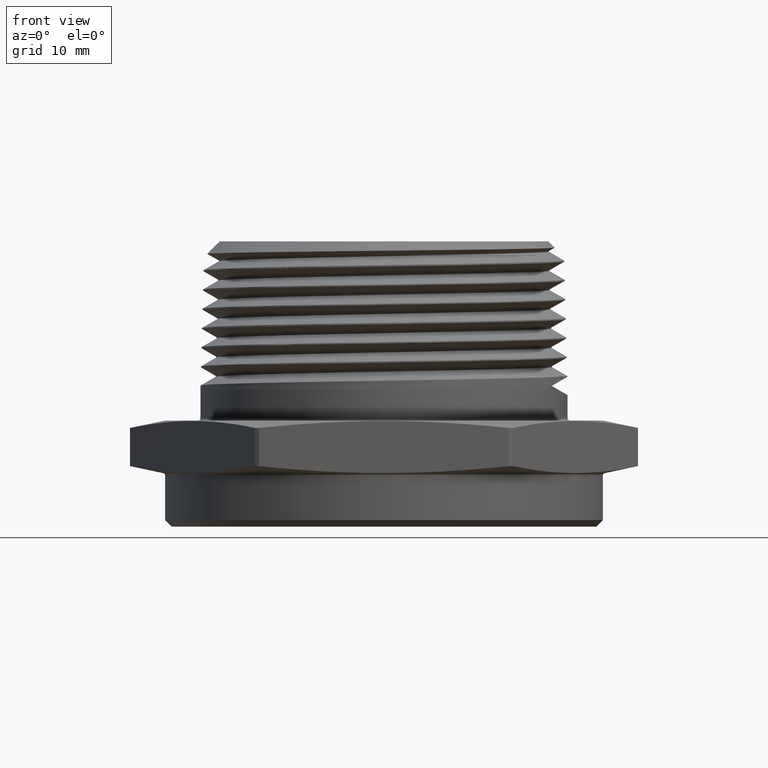
[diagram: clean part render]
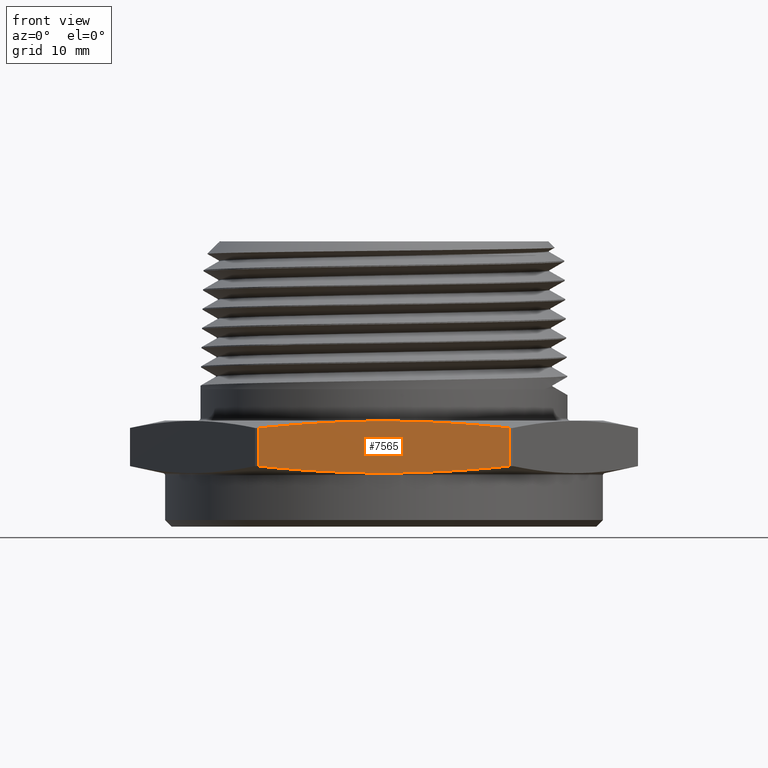
[diagram: same view with one face highlighted and labeled with its STEP entity id]
A machine part, front view. The second image highlights one B-rep face of the part: STEP entity #7565.
In plain terms, the highlighted planar face has unit normal (-0, 1, 0).
Its self-contained STEP definition (entity closure, byte-faithful):
#270 = AXIS2_PLACEMENT_3D ( 'NONE', #960, #965, #966 ) ;
#459 = B_SPLINE_CURVE_WITH_KNOTS ( 'NONE', 3,
 ( #6205, #6195, #6197, #6207, #6208, #6209, #6210, #6211, #6212, #6213 ),
 .UNSPECIFIED., .F., .F.,
 ( 4, 2, 2, 2, 4 ),
 ( 0.05573964240388473700, 0.06293994667375101000, 0.07014025094361726900, 0.07734055521348354200, 0.08454085948334980100 ),
 .UNSPECIFIED. ) ;
#462 = B_SPLINE_CURVE_WITH_KNOTS ( 'NONE', 3,
 ( #6233, #6223, #6225, #6235, #6236, #6237, #6238, #6239, #6240, #6241 ),
 .UNSPECIFIED., .F., .F.,
 ( 4, 2, 2, 2, 4 ),
 ( 0.02464821346536203600, 0.03185556859266473100, 0.03906292371996741800, 0.04627027884727011300, 0.05347763397457280800 ),
 .UNSPECIFIED. ) ;
#847 = CARTESIAN_POINT ( 'NONE',  ( 0.5652547451130174300, -0.9999999999999994400, 0.2062671592269260100 ) ) ;
#851 = CARTESIAN_POINT ( 'NONE',  ( 0.5652547451130174300, -0.9999999999999994400, 0.03373284077307360500 ) ) ;
#852 = CARTESIAN_POINT ( 'NONE',  ( -0.5652547451130169900, -0.9999999999999996700, 0.2062671592269261500 ) ) ;
#862 = CARTESIAN_POINT ( 'NONE',  ( -0.5652547451130169900, -0.9999999999999996700, 0.03373284077307382000 ) ) ;
#959 = PLANE ( 'NONE',  #270 ) ;
#960 = CARTESIAN_POINT ( 'NONE',  ( -0.5773502691896251800, -1.000000000000000000, 0.2399999999999999900 ) ) ;
#965 = DIRECTION ( 'NONE',  ( -2.365849761790803500E-016, 1.000000000000000000, 0.0000000000000000000 ) ) ;
#966 = DIRECTION ( 'NONE',  ( -1.000000000000000000, -2.365849761790803500E-016, 0.0000000000000000000 ) ) ;
#1124 = FACE_OUTER_BOUND ( 'NONE', #5093, .T. ) ;
#4698 = EDGE_CURVE ( 'NONE', #7310, #7320, #7486, .T. ) ;
#4705 = EDGE_CURVE ( 'NONE', #7309, #7304, #7498, .T. ) ;
#4715 = EDGE_CURVE ( 'NONE', #7304, #7310, #459, .T. ) ;
#4718 = EDGE_CURVE ( 'NONE', #7320, #7309, #462, .T. ) ;
#4973 = ORIENTED_EDGE ( 'NONE', *, *, #4718, .T. ) ;
#4974 = ORIENTED_EDGE ( 'NONE', *, *, #4705, .T. ) ;
#4975 = ORIENTED_EDGE ( 'NONE', *, *, #4715, .T. ) ;
#4976 = ORIENTED_EDGE ( 'NONE', *, *, #4698, .T. ) ;
#5093 = EDGE_LOOP ( 'NONE', ( #4973, #4974, #4975, #4976 ) ) ;
#6145 = CARTESIAN_POINT ( 'NONE',  ( -0.5652547451130169900, -0.9999999999999996700, 7.093871012830902500E-017 ) ) ;
#6151 = DIRECTION ( 'NONE',  ( -1.254986547952384500E-016, -0.0000000000000000000, -1.000000000000000000 ) ) ;
#6170 = DIRECTION ( 'NONE',  ( 1.254986547952384500E-016, 0.0000000000000000000, 1.000000000000000000 ) ) ;
#6173 = CARTESIAN_POINT ( 'NONE',  ( 0.5652547451130174300, -0.9999999999999994400, -7.093871012830902500E-017 ) ) ;
#6195 = CARTESIAN_POINT ( 'NONE',  ( 0.4712475040554237600, -0.9999999999999998900, 0.2160998688879318700 ) ) ;
#6197 = CARTESIAN_POINT ( 'NONE',  ( 0.3771985397245069000, -1.000000000000000200, 0.2240727341064834800 ) ) ;
#6205 = CARTESIAN_POINT ( 'NONE',  ( 0.5652547451130174300, -0.9999999999999994400, 0.2062671592269260100 ) ) ;
#6207 = CARTESIAN_POINT ( 'NONE',  ( 0.1889873500966714200, -1.000000000000000000, 0.2349697768115718000 ) ) ;
#6208 = CARTESIAN_POINT ( 'NONE',  ( 0.09482441786527295900, -0.9999999999999996700, 0.2378624421932743200 ) ) ;
#6209 = CARTESIAN_POINT ( 'NONE',  ( -0.09363069686368993800, -0.9999999999999998900, 0.2378863508516600400 ) ) ;
#6210 = CARTESIAN_POINT ( 'NONE',  ( -0.1879228996696020200, -1.000000000000000000, 0.2350166888694126800 ) ) ;
#6211 = CARTESIAN_POINT ( 'NONE',  ( -0.3766229897602760300, -0.9999999999999998900, 0.2241206473721582300 ) ) ;
#6212 = CARTESIAN_POINT ( 'NONE',  ( -0.4711164605598329700, -1.000000000000000000, 0.2161135754134146100 ) ) ;
#6213 = CARTESIAN_POINT ( 'NONE',  ( -0.5652547451130169900, -0.9999999999999996700, 0.2062671592269261500 ) ) ;
#6223 = CARTESIAN_POINT ( 'NONE',  ( -0.4711164605598326900, -1.000000000000000200, 0.02388642458658525900 ) ) ;
#6225 = CARTESIAN_POINT ( 'NONE',  ( -0.3766229897602752500, -1.000000000000000200, 0.01587935262784156600 ) ) ;
#6233 = CARTESIAN_POINT ( 'NONE',  ( -0.5652547451130169900, -0.9999999999999996700, 0.03373284077307382000 ) ) ;
#6235 = CARTESIAN_POINT ( 'NONE',  ( -0.1879228996696014100, -0.9999999999999996700, 0.004983311130587051400 ) ) ;
#6236 = CARTESIAN_POINT ( 'NONE',  ( -0.09363069686368995200, -1.000000000000000000, 0.002113649148339590600 ) ) ;
#6237 = CARTESIAN_POINT ( 'NONE',  ( 0.09482441786527293100, -0.9999999999999996700, 0.002137557806725240900 ) ) ;
#6238 = CARTESIAN_POINT ( 'NONE',  ( 0.1889873500966710300, -0.9999999999999996700, 0.005030223188427782400 ) ) ;
#6239 = CARTESIAN_POINT ( 'NONE',  ( 0.3771985397245065100, -0.9999999999999998900, 0.01592726589351610100 ) ) ;
#6240 = CARTESIAN_POINT ( 'NONE',  ( 0.4712475040554235900, -1.000000000000000200, 0.02390013111206773900 ) ) ;
#6241 = CARTESIAN_POINT ( 'NONE',  ( 0.5652547451130174300, -0.9999999999999994400, 0.03373284077307360500 ) ) ;
#7304 = VERTEX_POINT ( 'NONE', #847 ) ;
#7309 = VERTEX_POINT ( 'NONE', #851 ) ;
#7310 = VERTEX_POINT ( 'NONE', #852 ) ;
#7320 = VERTEX_POINT ( 'NONE', #862 ) ;
#7486 = LINE ( 'NONE', #6145, #7488 ) ;
#7488 = VECTOR ( 'NONE', #6151, 39.37007874015748100 ) ;
#7498 = LINE ( 'NONE', #6173, #7505 ) ;
#7505 = VECTOR ( 'NONE', #6170, 39.37007874015748100 ) ;
#7565 = ADVANCED_FACE ( 'NONE', ( #1124 ), #959, .F. ) ;